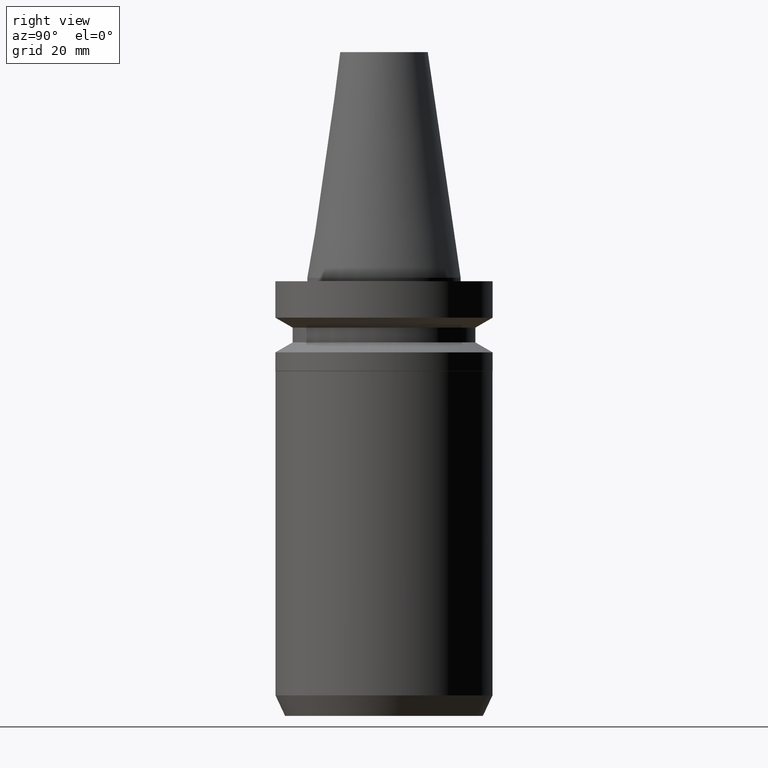
[diagram: clean part render]
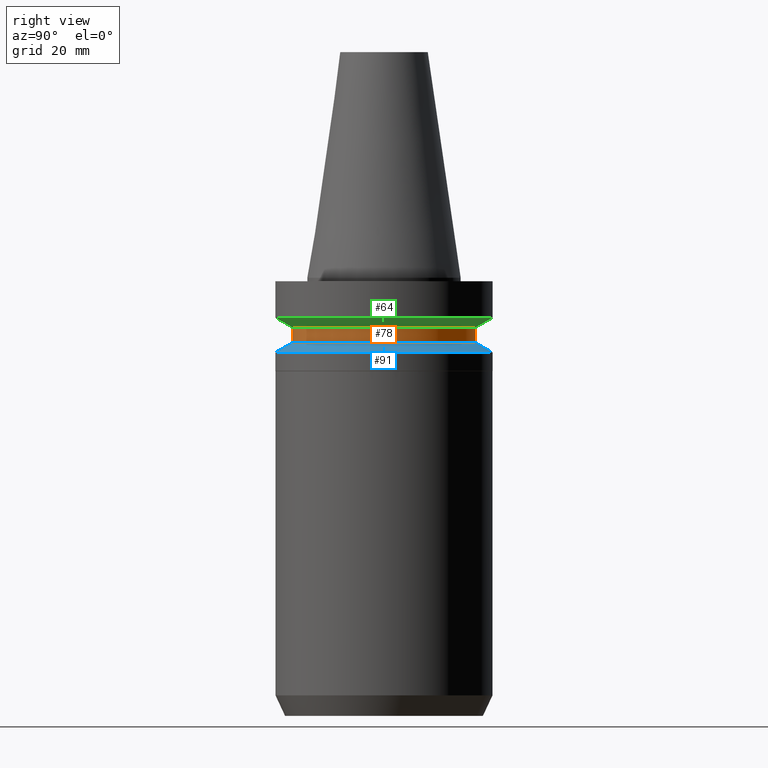
[diagram: same view with three faces highlighted in distinct colors, each labeled with its STEP entity id]
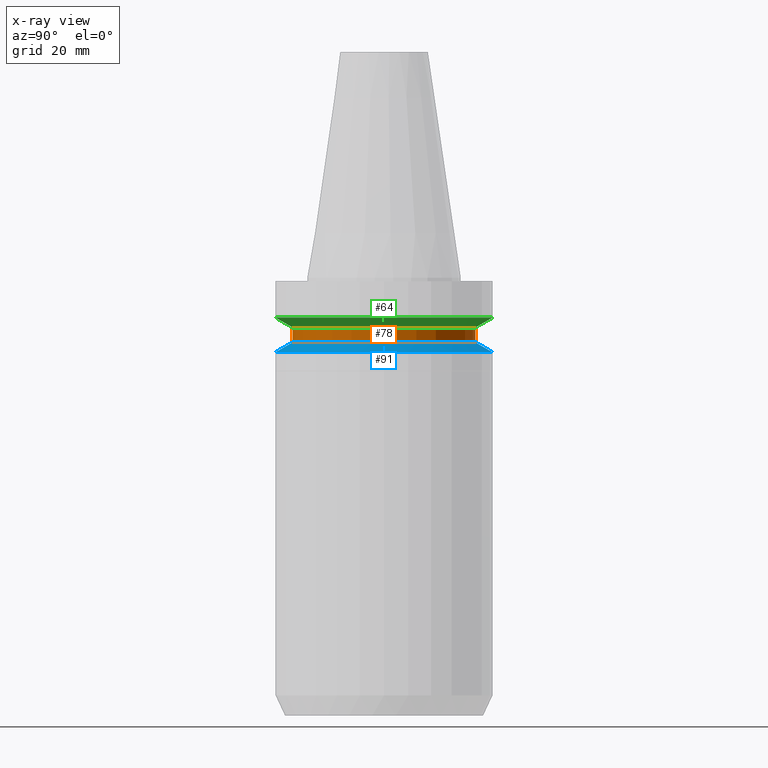
[diagram: x-ray of the same camera — body ghosted, the three highlighted faces saturated]
A machine part, right view with three faces highlighted in distinct colors.
The next image is the same camera in x-ray (body ghosted, the three faces saturated) — at least one of them is partly hidden behind the body in this view.
Their STEP definitions:

[orange] entity #78 — the highlighted cylindrical surface (bore or boss wall) has radius 26.5 mm, axis along (0, -0, -1).
#61=EDGE_CURVE('Unnamed[1]',#150,#150,#151,.T.);
#78=ADVANCED_FACE('Unnamed[1]',(#174,#175),#176,.T.);
#110=EDGE_CURVE('Unnamed[1]',#225,#225,#226,.T.);
#150=VERTEX_POINT('',#263);
#151=CIRCLE('',#264,26.4999999999994);
#174=FACE_BOUND('',#293,.T.);
#175=FACE_BOUND('',#294,.T.);
#176=CYLINDRICAL_SURFACE('',#295,26.4999999999997);
#225=VERTEX_POINT('',#356);
#226=CIRCLE('',#357,26.5);
#263=CARTESIAN_POINT('',(8.8494551369045E-016,26.4999999999995,-14.4522569986152));
#264=AXIS2_PLACEMENT_3D('',#388,#389,#390);
#293=EDGE_LOOP('',(#411));
#294=EDGE_LOOP('',(#412));
#295=AXIS2_PLACEMENT_3D('',#413,#414,#415);
#356=CARTESIAN_POINT('',(1.1479681728942E-015,26.5,-18.7477430013855));
#357=AXIS2_PLACEMENT_3D('',#471,#472,#473);
#388=CARTESIAN_POINT('',(8.84945513690449E-016,5.15859036671972E-014,-14.4522569986152));
#389=DIRECTION('',(6.12323399573676E-017,-3.16409739642818E-016,-1.0));
#390=DIRECTION('',(1.45473560128599E-032,1.0,-3.16409739642818E-016));
#411=ORIENTED_EDGE('',*,*,#110,.F.);
#412=ORIENTED_EDGE('',*,*,#61,.T.);
#413=CARTESIAN_POINT('',(1.01645684329232E-015,5.09063368633093E-014,-16.6000000000003));
#414=DIRECTION('',(6.12323399573677E-017,-3.16409739642814E-016,-1.0));
#415=DIRECTION('',(1.45473560128632E-032,1.0,-3.16409739642814E-016));
#471=CARTESIAN_POINT('',(1.1479681728942E-015,5.02267700594213E-014,-18.7477430013855));
#472=DIRECTION('',(6.12323399573677E-017,-3.16409739642811E-016,-1.0));
#473=DIRECTION('',(1.4547356012863E-032,1.0,-3.16409739642811E-016));

[blue] entity #91 — the highlighted conical surface has half-angle 60 deg.
#68=EDGE_CURVE('Unnamed[1]',#161,#161,#162,.T.);
#91=ADVANCED_FACE('Unnamed[1]',(#195,#196),#197,.T.);
#110=EDGE_CURVE('Unnamed[1]',#225,#225,#226,.T.);
#161=VERTEX_POINT('',#277);
#162=CIRCLE('',#278,31.5000000000007);
#195=FACE_BOUND('',#319,.T.);
#196=FACE_BOUND('',#320,.T.);
#197=CONICAL_SURFACE('',#321,29.0000000000003,1.04719755119651);
#225=VERTEX_POINT('',#356);
#226=CIRCLE('',#357,26.5);
#277=CARTESIAN_POINT('',(1.32473071268174E-015,31.5000000000007,-21.6344943473346));
#278=AXIS2_PLACEMENT_3D('',#400,#401,#402);
#319=EDGE_LOOP('',(#435));
#320=EDGE_LOOP('',(#436));
#321=AXIS2_PLACEMENT_3D('',#437,#438,#439);
#356=CARTESIAN_POINT('',(1.1479681728942E-015,26.5,-18.7477430013855));
#357=AXIS2_PLACEMENT_3D('',#471,#472,#473);
#400=CARTESIAN_POINT('',(1.32473071268174E-015,4.93133738176361E-014,-21.6344943473346));
#401=DIRECTION('',(6.12323399573677E-017,-3.16409739642792E-016,-1.0));
#402=DIRECTION('',(1.45473560128572E-032,1.0,-3.16409739642792E-016));
#435=ORIENTED_EDGE('',*,*,#68,.F.);
#436=ORIENTED_EDGE('',*,*,#110,.T.);
#437=CARTESIAN_POINT('',(1.23634944278797E-015,4.97700719385287E-014,-20.1911186743601));
#438=DIRECTION('',(6.12323399573677E-017,-3.16409739642773E-016,-1.0));
#439=DIRECTION('',(1.45473560128598E-032,1.0,-3.16409739642773E-016));
#471=CARTESIAN_POINT('',(1.1479681728942E-015,5.02267700594213E-014,-18.7477430013855));
#472=DIRECTION('',(6.12323399573677E-017,-3.16409739642811E-016,-1.0));
#473=DIRECTION('',(1.4547356012863E-032,1.0,-3.16409739642811E-016));

[green] entity #64 — the highlighted conical surface has half-angle 60 deg.
#61=EDGE_CURVE('Unnamed[1]',#150,#150,#151,.T.);
#64=ADVANCED_FACE('Unnamed[1]',(#154,#155),#156,.T.);
#70=EDGE_CURVE('Unnamed[1]',#164,#164,#165,.T.);
#150=VERTEX_POINT('',#263);
#151=CIRCLE('',#264,26.4999999999994);
#154=FACE_BOUND('',#268,.T.);
#155=FACE_BOUND('',#269,.T.);
#156=CONICAL_SURFACE('',#270,28.9999999999999,1.04719755119657);
#164=VERTEX_POINT('',#281);
#165=CIRCLE('',#282,31.5000000000003);
#263=CARTESIAN_POINT('',(8.8494551369045E-016,26.4999999999995,-14.4522569986152));
#264=AXIS2_PLACEMENT_3D('',#388,#389,#390);
#268=EDGE_LOOP('',(#392));
#269=EDGE_LOOP('',(#393));
#270=AXIS2_PLACEMENT_3D('',#394,#395,#396);
#281=CARTESIAN_POINT('',(7.08182973902924E-016,31.5000000000004,-11.5655056526664));
#282=AXIS2_PLACEMENT_3D('',#403,#404,#405);
#388=CARTESIAN_POINT('',(8.84945513690449E-016,5.15859036671972E-014,-14.4522569986152));
#389=DIRECTION('',(6.12323399573676E-017,-3.16409739642818E-016,-1.0));
#390=DIRECTION('',(1.45473560128599E-032,1.0,-3.16409739642818E-016));
#392=ORIENTED_EDGE('',*,*,#61,.F.);
#393=ORIENTED_EDGE('',*,*,#70,.T.);
#394=CARTESIAN_POINT('',(7.96564243796687E-016,5.20426017880898E-014,-13.0088813256408));
#395=DIRECTION('',(-6.12323399573677E-017,3.16409739642778E-016,1.0));
#396=DIRECTION('',(1.4547356012857E-032,1.0,-3.16409739642778E-016));
#403=CARTESIAN_POINT('',(7.08182973902923E-016,5.24992999089823E-014,-11.5655056526663));
#404=DIRECTION('',(6.12323399573677E-017,-3.16409739642795E-016,-1.0));
#405=DIRECTION('',(1.45473560128602E-032,1.0,-3.16409739642795E-016));